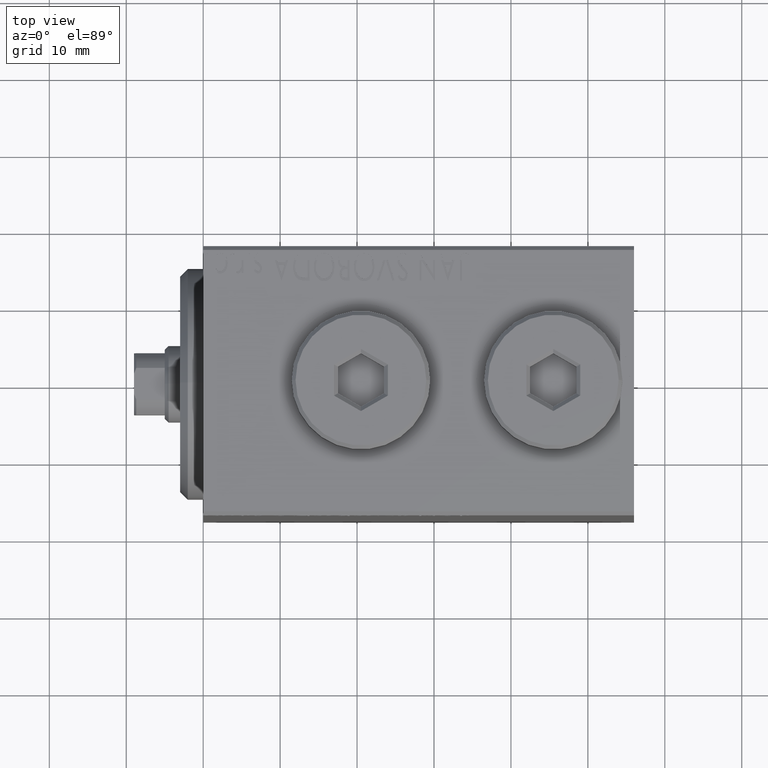
[diagram: clean part render]
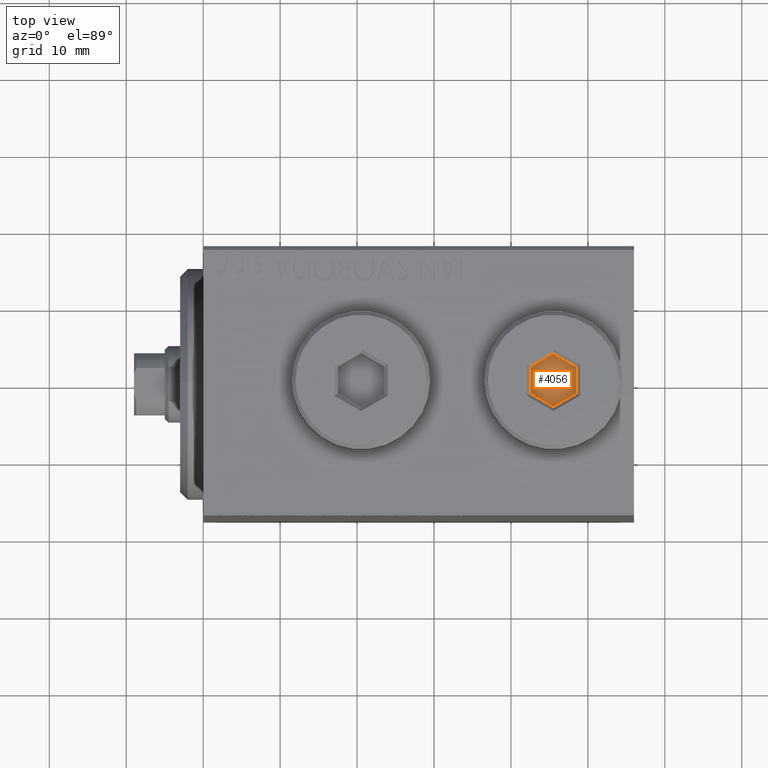
[diagram: same view with one face highlighted and labeled with its STEP entity id]
A machine part, top view. The second image highlights one B-rep face of the part: STEP entity #4056.
In plain terms, the highlighted planar face has unit normal (0, 0, 1).
Its self-contained STEP definition (entity closure, byte-faithful):
#708 = CARTESIAN_POINT ( 'NONE',  ( -1.288750986297053243E-16, -3.464101615137754830, 2.000000000000000000 ) ) ;
#1649 = LINE ( 'NONE', #39863, #10857 ) ;
#2845 = VERTEX_POINT ( 'NONE', #33692 ) ;
#3975 = DIRECTION ( 'NONE',  ( 0.000000000000000000, 1.000000000000000000, 0.000000000000000000 ) ) ;
#4056 = ADVANCED_FACE ( 'NONE', ( #21203 ), #42632, .T. ) ;
#5692 = EDGE_CURVE ( 'NONE', #11788, #9287, #19925, .T. ) ;
#6047 = LINE ( 'NONE', #6507, #41416 ) ;
#6507 = CARTESIAN_POINT ( 'NONE',  ( -3.000000000000000000, 1.732050807568878081, 2.000000000000000000 ) ) ;
#8371 = EDGE_CURVE ( 'NONE', #9263, #12467, #41193, .T. ) ;
#9263 = VERTEX_POINT ( 'NONE', #38872 ) ;
#9287 = VERTEX_POINT ( 'NONE', #708 ) ;
#9702 = AXIS2_PLACEMENT_3D ( 'NONE', #39181, #17750, #31793 ) ;
#9888 = CARTESIAN_POINT ( 'NONE',  ( 3.000000000000000000, 1.732050807568877859, 2.000000000000000000 ) ) ;
#10679 = CARTESIAN_POINT ( 'NONE',  ( 0.000000000000000000, 3.464101615137754386, 2.000000000000000000 ) ) ;
#10857 = VECTOR ( 'NONE', #42459, 1000.000000000000000 ) ;
#11788 = VERTEX_POINT ( 'NONE', #23854 ) ;
#12467 = VERTEX_POINT ( 'NONE', #28415 ) ;
#14018 = DIRECTION ( 'NONE',  ( -0.8660254037844387076, 0.4999999999999998335, 0.000000000000000000 ) ) ;
#16171 = ORIENTED_EDGE ( 'NONE', *, *, #38159, .T. ) ;
#16480 = CARTESIAN_POINT ( 'NONE',  ( -3.000000000000000000, -1.732050807568877415, 2.000000000000000000 ) ) ;
#17649 = ORIENTED_EDGE ( 'NONE', *, *, #43287, .T. ) ;
#17750 = DIRECTION ( 'NONE',  ( 0.000000000000000000, 0.000000000000000000, 1.000000000000000000 ) ) ;
#18715 = EDGE_LOOP ( 'NONE', ( #31632, #19523, #39226, #42627, #17649, #16171 ) ) ;
#19523 = ORIENTED_EDGE ( 'NONE', *, *, #34322, .T. ) ;
#19925 = LINE ( 'NONE', #16480, #21373 ) ;
#21203 = FACE_OUTER_BOUND ( 'NONE', #18715, .T. ) ;
#21373 = VECTOR ( 'NONE', #40887, 1000.000000000000227 ) ;
#23854 = CARTESIAN_POINT ( 'NONE',  ( -3.000000000000000000, -1.732050807568877415, 2.000000000000000000 ) ) ;
#24209 = DIRECTION ( 'NONE',  ( 0.000000000000000000, -1.000000000000000000, 0.000000000000000000 ) ) ;
#24227 = CARTESIAN_POINT ( 'NONE',  ( 3.000000000000000000, -1.732050807568878303, 2.000000000000000000 ) ) ;
#24684 = LINE ( 'NONE', #24227, #40227 ) ;
#25389 = VECTOR ( 'NONE', #35295, 1000.000000000000227 ) ;
#28303 = EDGE_CURVE ( 'NONE', #39363, #11788, #6047, .T. ) ;
#28415 = CARTESIAN_POINT ( 'NONE',  ( 0.000000000000000000, 3.464101615137754386, 2.000000000000000000 ) ) ;
#31632 = ORIENTED_EDGE ( 'NONE', *, *, #8371, .T. ) ;
#31793 = DIRECTION ( 'NONE',  ( 1.000000000000000000, 0.000000000000000000, -0.000000000000000000 ) ) ;
#32497 = VECTOR ( 'NONE', #14018, 1000.000000000000000 ) ;
#33692 = CARTESIAN_POINT ( 'NONE',  ( 3.000000000000000000, -1.732050807568878303, 2.000000000000000000 ) ) ;
#34322 = EDGE_CURVE ( 'NONE', #12467, #39363, #42206, .T. ) ;
#35295 = DIRECTION ( 'NONE',  ( -0.8660254037844387076, -0.4999999999999997780, 0.000000000000000000 ) ) ;
#38159 = EDGE_CURVE ( 'NONE', #2845, #9263, #24684, .T. ) ;
#38872 = CARTESIAN_POINT ( 'NONE',  ( 3.000000000000000000, 1.732050807568877859, 2.000000000000000000 ) ) ;
#39181 = CARTESIAN_POINT ( 'NONE',  ( 0.000000000000000000, 0.000000000000000000, 2.000000000000000000 ) ) ;
#39226 = ORIENTED_EDGE ( 'NONE', *, *, #28303, .T. ) ;
#39363 = VERTEX_POINT ( 'NONE', #40397 ) ;
#39863 = CARTESIAN_POINT ( 'NONE',  ( -1.288750986297053243E-16, -3.464101615137754830, 2.000000000000000000 ) ) ;
#40227 = VECTOR ( 'NONE', #3975, 1000.000000000000000 ) ;
#40397 = CARTESIAN_POINT ( 'NONE',  ( -3.000000000000000000, 1.732050807568878081, 2.000000000000000000 ) ) ;
#40887 = DIRECTION ( 'NONE',  ( 0.8660254037844385966, -0.4999999999999998890, 0.000000000000000000 ) ) ;
#41193 = LINE ( 'NONE', #9888, #32497 ) ;
#41416 = VECTOR ( 'NONE', #24209, 1000.000000000000000 ) ;
#42206 = LINE ( 'NONE', #10679, #25389 ) ;
#42459 = DIRECTION ( 'NONE',  ( 0.8660254037844387076, 0.4999999999999998335, 0.000000000000000000 ) ) ;
#42627 = ORIENTED_EDGE ( 'NONE', *, *, #5692, .T. ) ;
#42632 = PLANE ( 'NONE',  #9702 ) ;
#43287 = EDGE_CURVE ( 'NONE', #9287, #2845, #1649, .T. ) ;